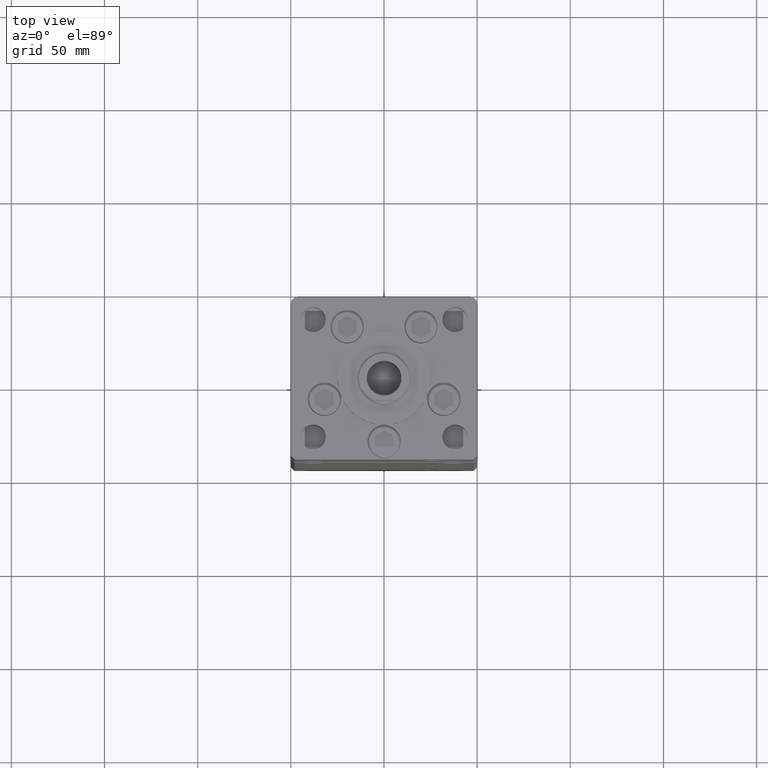
[diagram: clean part render]
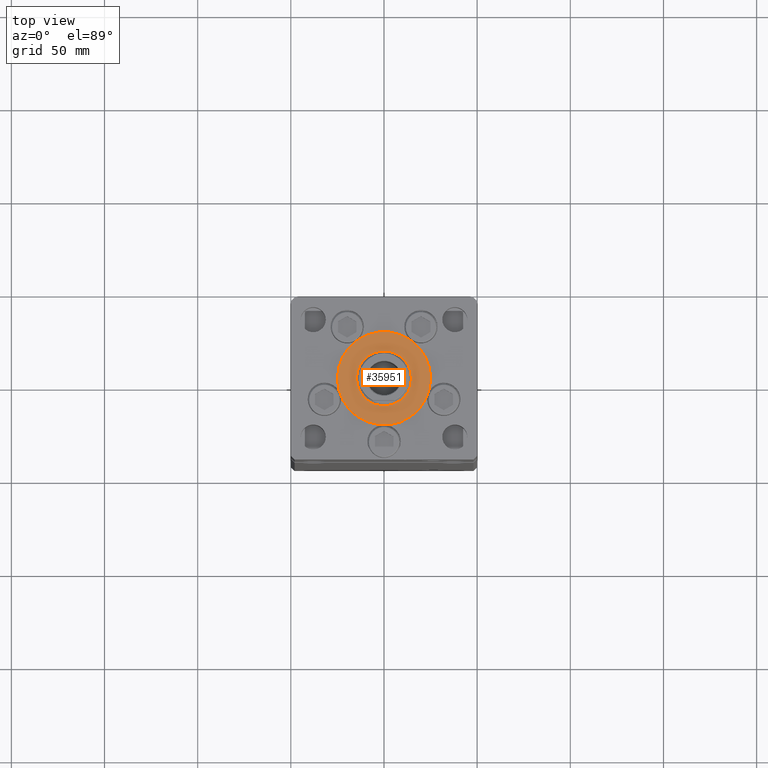
[diagram: same view with one face highlighted and labeled with its STEP entity id]
A machine part, top view. The second image highlights one B-rep face of the part: STEP entity #35951.
In plain terms, the highlighted planar face has unit normal (0, 0, 1).
Its self-contained STEP definition (entity closure, byte-faithful):
#753 = ORIENTED_EDGE ( 'NONE', *, *, #41174, .T. ) ;
#5080 = CARTESIAN_POINT ( 'NONE',  ( -25.00000000000000000, -6.938893903907228378E-15, 2.000000000000000000 ) ) ;
#5664 = DIRECTION ( 'NONE',  ( 1.000000000000000000, 0.000000000000000000, 0.000000000000000000 ) ) ;
#5692 = CIRCLE ( 'NONE', #49482, 14.75000000000000178 ) ;
#7035 = EDGE_CURVE ( 'NONE', #25192, #33457, #13787, .T. ) ;
#7293 = CIRCLE ( 'NONE', #27900, 14.75000000000000178 ) ;
#7937 = VERTEX_POINT ( 'NONE', #18577 ) ;
#9584 = ORIENTED_EDGE ( 'NONE', *, *, #51119, .F. ) ;
#9983 = CARTESIAN_POINT ( 'NONE',  ( 0.000000000000000000, -6.938893903907228378E-15, 2.000000000000000000 ) ) ;
#10358 = DIRECTION ( 'NONE',  ( 1.000000000000000000, 0.000000000000000000, 0.000000000000000000 ) ) ;
#13787 = CIRCLE ( 'NONE', #26634, 25.00000000000000000 ) ;
#13932 = CARTESIAN_POINT ( 'NONE',  ( 0.000000000000000000, -6.938893903907228378E-15, 2.000000000000000000 ) ) ;
#14995 = DIRECTION ( 'NONE',  ( 0.000000000000000000, 0.000000000000000000, 1.000000000000000000 ) ) ;
#15451 = DIRECTION ( 'NONE',  ( 1.000000000000000000, 0.000000000000000000, -0.000000000000000000 ) ) ;
#15990 = DIRECTION ( 'NONE',  ( 0.000000000000000000, 0.000000000000000000, 1.000000000000000000 ) ) ;
#18577 = CARTESIAN_POINT ( 'NONE',  ( -14.75000000000000178, -5.132539875164881787E-15, 2.000000000000000000 ) ) ;
#19109 = CIRCLE ( 'NONE', #27696, 25.00000000000000000 ) ;
#23523 = FACE_OUTER_BOUND ( 'NONE', #40064, .T. ) ;
#23928 = EDGE_CURVE ( 'NONE', #48846, #7937, #7293, .T. ) ;
#24322 = DIRECTION ( 'NONE',  ( 1.000000000000000000, 0.000000000000000000, 0.000000000000000000 ) ) ;
#25192 = VERTEX_POINT ( 'NONE', #5080 ) ;
#25568 = DIRECTION ( 'NONE',  ( 0.000000000000000000, 0.000000000000000000, 1.000000000000000000 ) ) ;
#26634 = AXIS2_PLACEMENT_3D ( 'NONE', #9983, #25568, #5664 ) ;
#27537 = CARTESIAN_POINT ( 'NONE',  ( 0.000000000000000000, -6.938893903907228378E-15, 2.000000000000000000 ) ) ;
#27696 = AXIS2_PLACEMENT_3D ( 'NONE', #51479, #38841, #10358 ) ;
#27900 = AXIS2_PLACEMENT_3D ( 'NONE', #40422, #15990, #24322 ) ;
#29432 = CARTESIAN_POINT ( 'NONE',  ( 14.75000000000000178, -6.938893903907228378E-15, 2.000000000000000000 ) ) ;
#30275 = AXIS2_PLACEMENT_3D ( 'NONE', #27537, #52273, #15451 ) ;
#31227 = CARTESIAN_POINT ( 'NONE',  ( 25.00000000000000000, -3.877276906038844941E-15, 2.000000000000000000 ) ) ;
#33457 = VERTEX_POINT ( 'NONE', #31227 ) ;
#35951 = ADVANCED_FACE ( 'NONE', ( #43114, #23523 ), #52003, .T. ) ;
#38841 = DIRECTION ( 'NONE',  ( 0.000000000000000000, 0.000000000000000000, 1.000000000000000000 ) ) ;
#39744 = EDGE_LOOP ( 'NONE', ( #43415, #9584 ) ) ;
#40064 = EDGE_LOOP ( 'NONE', ( #51776, #753 ) ) ;
#40422 = CARTESIAN_POINT ( 'NONE',  ( 0.000000000000000000, -6.938893903907228378E-15, 2.000000000000000000 ) ) ;
#41174 = EDGE_CURVE ( 'NONE', #33457, #25192, #19109, .T. ) ;
#43114 = FACE_BOUND ( 'NONE', #39744, .T. ) ;
#43190 = DIRECTION ( 'NONE',  ( 1.000000000000000000, 0.000000000000000000, 0.000000000000000000 ) ) ;
#43415 = ORIENTED_EDGE ( 'NONE', *, *, #23928, .F. ) ;
#48846 = VERTEX_POINT ( 'NONE', #29432 ) ;
#49482 = AXIS2_PLACEMENT_3D ( 'NONE', #13932, #14995, #43190 ) ;
#51119 = EDGE_CURVE ( 'NONE', #7937, #48846, #5692, .T. ) ;
#51479 = CARTESIAN_POINT ( 'NONE',  ( 0.000000000000000000, -6.938893903907228378E-15, 2.000000000000000000 ) ) ;
#51776 = ORIENTED_EDGE ( 'NONE', *, *, #7035, .T. ) ;
#52003 = PLANE ( 'NONE',  #30275 ) ;
#52273 = DIRECTION ( 'NONE',  ( 0.000000000000000000, 0.000000000000000000, 1.000000000000000000 ) ) ;